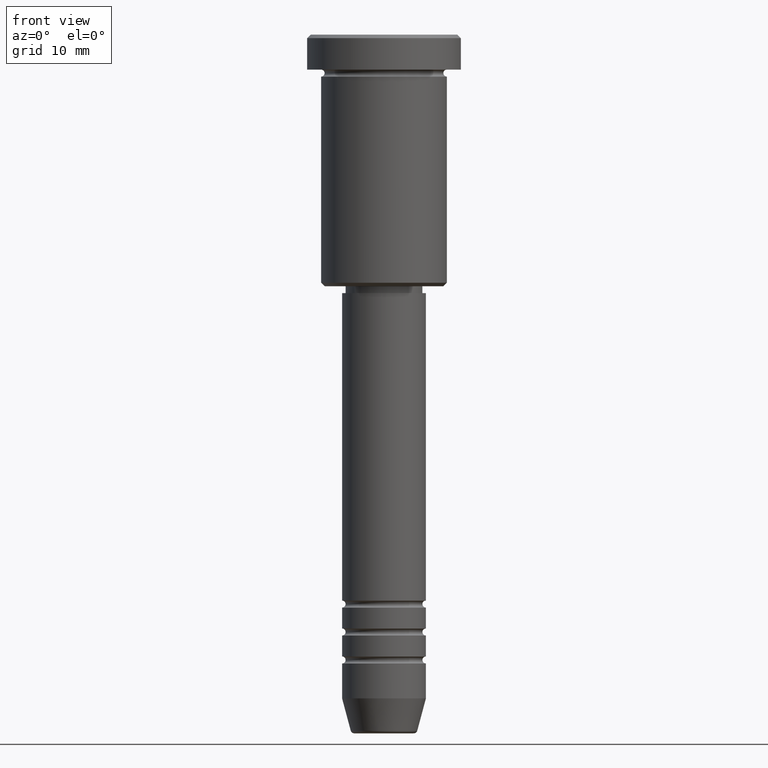
[diagram: clean part render]
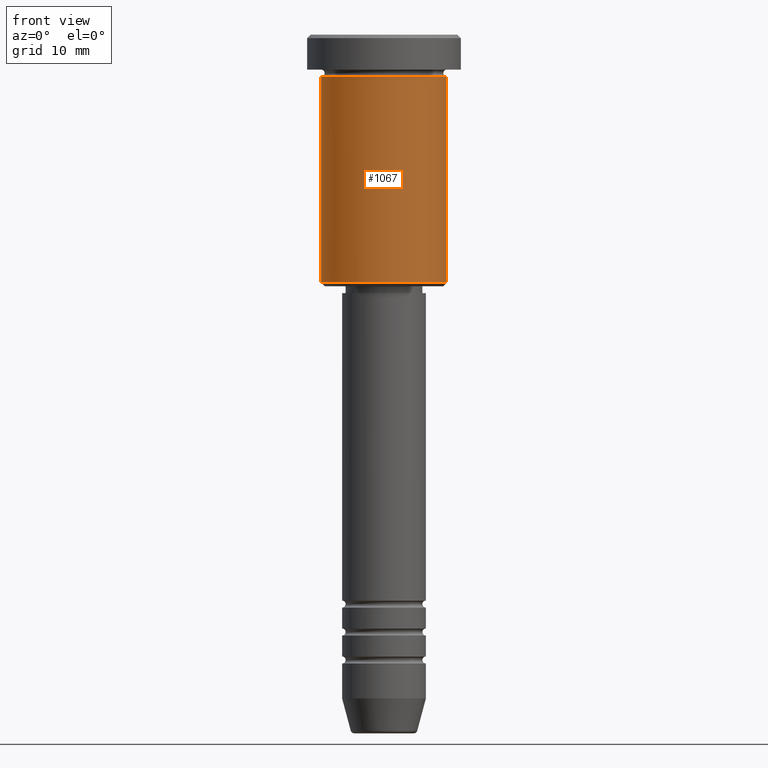
[diagram: same view with one face highlighted and labeled with its STEP entity id]
A machine part, front view. The second image highlights one B-rep face of the part: STEP entity #1067.
In plain terms, the highlighted cylindrical surface (partial cylindrical patch) has radius 9 mm, axis along (-0, -0, 1).
Its self-contained STEP definition (entity closure, byte-faithful):
#8 = ORIENTED_EDGE ( 'NONE', *, *, #318, .T. ) ;
#35 = DIRECTION ( 'NONE',  ( 1.000000000000000000, 0.000000000000000000, 0.000000000000000000 ) ) ;
#81 = CYLINDRICAL_SURFACE ( 'NONE', #225, 9.000000000000000000 ) ;
#109 = AXIS2_PLACEMENT_3D ( 'NONE', #424, #1147, #35 ) ;
#156 = CARTESIAN_POINT ( 'NONE',  ( 9.000000000000000000, 0.000000000000000000, 0.000000000000000000 ) ) ;
#160 = CARTESIAN_POINT ( 'NONE',  ( -9.000000000000000000, 1.102182119232617714E-15, -35.49999999999996447 ) ) ;
#225 = AXIS2_PLACEMENT_3D ( 'NONE', #451, #356, #820 ) ;
#228 = CARTESIAN_POINT ( 'NONE',  ( -9.000000000000000000, 1.102182119232617714E-15, 0.000000000000000000 ) ) ;
#235 = DIRECTION ( 'NONE',  ( -0.000000000000000000, -0.000000000000000000, 1.000000000000000000 ) ) ;
#256 = VERTEX_POINT ( 'NONE', #709 ) ;
#269 = CARTESIAN_POINT ( 'NONE',  ( 9.000000000000000000, 0.000000000000000000, -6.000000000000000000 ) ) ;
#317 = DIRECTION ( 'NONE',  ( -0.000000000000000000, -0.000000000000000000, 1.000000000000000000 ) ) ;
#318 = EDGE_CURVE ( 'NONE', #256, #699, #982, .T. ) ;
#352 = EDGE_CURVE ( 'NONE', #734, #984, #1063, .T. ) ;
#356 = DIRECTION ( 'NONE',  ( -0.000000000000000000, -0.000000000000000000, 1.000000000000000000 ) ) ;
#377 = EDGE_CURVE ( 'NONE', #984, #699, #1158, .T. ) ;
#400 = EDGE_CURVE ( 'NONE', #734, #256, #912, .T. ) ;
#424 = CARTESIAN_POINT ( 'NONE',  ( 0.000000000000000000, 0.000000000000000000, -6.000000000000000000 ) ) ;
#441 = EDGE_LOOP ( 'NONE', ( #594, #1081, #8, #731 ) ) ;
#451 = CARTESIAN_POINT ( 'NONE',  ( 0.000000000000000000, 0.000000000000000000, 0.000000000000000000 ) ) ;
#471 = VECTOR ( 'NONE', #525, 1000.000000000000000 ) ;
#485 = CARTESIAN_POINT ( 'NONE',  ( 0.000000000000000000, 0.000000000000000000, -35.49999999999996447 ) ) ;
#525 = DIRECTION ( 'NONE',  ( -0.000000000000000000, -0.000000000000000000, 1.000000000000000000 ) ) ;
#550 = FACE_OUTER_BOUND ( 'NONE', #441, .T. ) ;
#594 = ORIENTED_EDGE ( 'NONE', *, *, #352, .F. ) ;
#611 = AXIS2_PLACEMENT_3D ( 'NONE', #485, #317, #1045 ) ;
#658 = CARTESIAN_POINT ( 'NONE',  ( -9.000000000000000000, 1.102182119232617714E-15, -6.000000000000000000 ) ) ;
#699 = VERTEX_POINT ( 'NONE', #269 ) ;
#709 = CARTESIAN_POINT ( 'NONE',  ( 9.000000000000000000, 0.000000000000000000, -35.49999999999996447 ) ) ;
#731 = ORIENTED_EDGE ( 'NONE', *, *, #377, .F. ) ;
#734 = VERTEX_POINT ( 'NONE', #160 ) ;
#741 = VECTOR ( 'NONE', #235, 1000.000000000000000 ) ;
#820 = DIRECTION ( 'NONE',  ( 1.000000000000000000, 0.000000000000000000, 0.000000000000000000 ) ) ;
#912 = CIRCLE ( 'NONE', #611, 9.000000000000000000 ) ;
#982 = LINE ( 'NONE', #156, #471 ) ;
#984 = VERTEX_POINT ( 'NONE', #658 ) ;
#1045 = DIRECTION ( 'NONE',  ( -1.000000000000000000, 0.000000000000000000, 0.000000000000000000 ) ) ;
#1063 = LINE ( 'NONE', #228, #741 ) ;
#1067 = ADVANCED_FACE ( 'NONE', ( #550 ), #81, .T. ) ;
#1081 = ORIENTED_EDGE ( 'NONE', *, *, #400, .T. ) ;
#1147 = DIRECTION ( 'NONE',  ( -0.000000000000000000, -0.000000000000000000, 1.000000000000000000 ) ) ;
#1158 = CIRCLE ( 'NONE', #109, 9.000000000000000000 ) ;